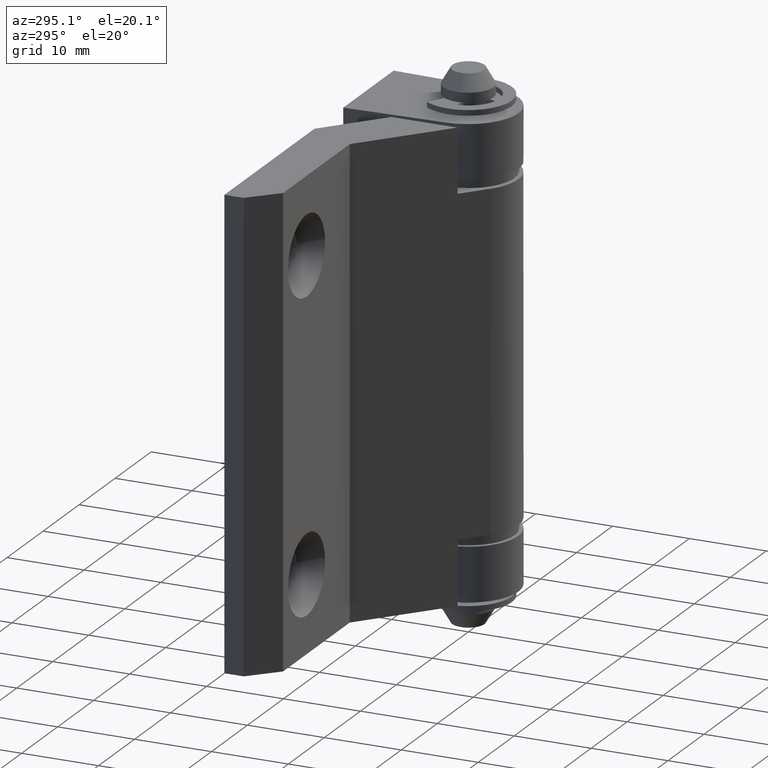
[diagram: clean part render]
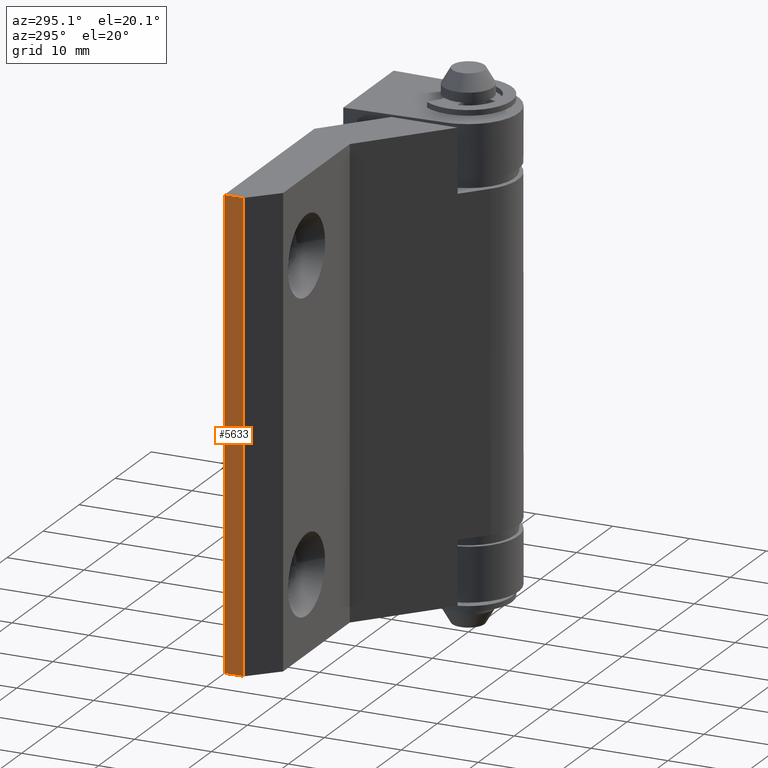
[diagram: same view with one face highlighted and labeled with its STEP entity id]
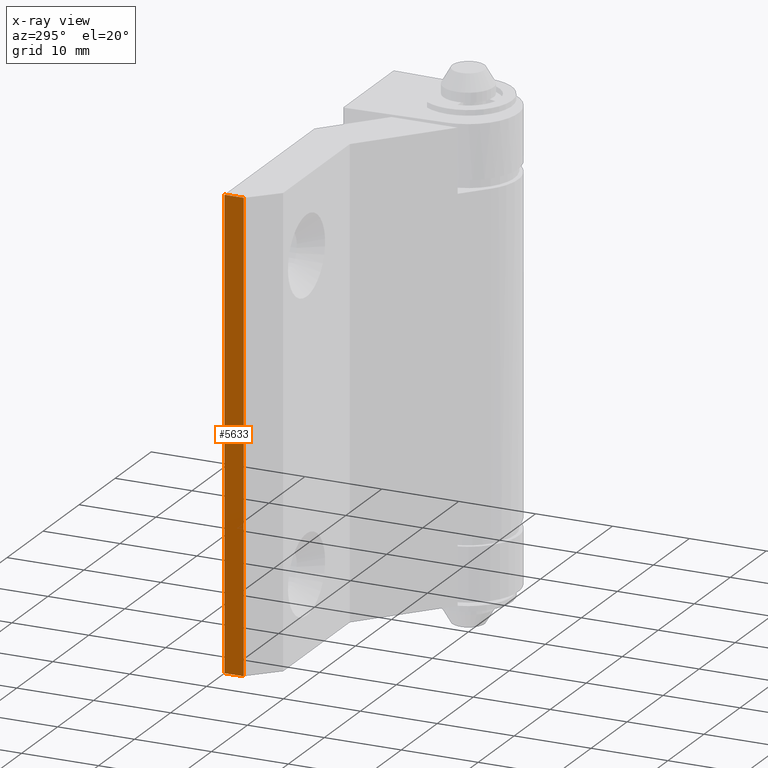
[diagram: x-ray of the same camera — body ghosted, the highlighted face saturated]
A machine part, auxiliary view. The second image highlights one B-rep face of the part: STEP entity #5633.
The next image is the same camera in x-ray: the body ghosted, the highlighted face saturated — about 0% of this face is hidden behind the body in this view.
In plain terms, the highlighted face is a freeform B-spline surface patch.
Its self-contained STEP definition (entity closure, byte-faithful):
#5598=CARTESIAN_POINT('',(-40.000030767411602,10.375125949138180,-2.997000026058217));
#5599=CARTESIAN_POINT('',(-40.000030767411602,10.375125949138180,62.997004485230804));
#5600=CARTESIAN_POINT('',(-40.000030767411602,13.124876038769820,-2.997000026058217));
#5601=CARTESIAN_POINT('',(-40.000030767411602,13.124876038769820,62.997004485230804));
#5602=B_SPLINE_SURFACE_WITH_KNOTS('',1,1,((#5598,#5600),(#5599,#5601)),.UNSPECIFIED.,.F.,.F.,.U.,(2,2),(2,2),(0.0,65.994004511289020),(0.0,2.749750089631643),.UNSPECIFIED.);
#5603=CARTESIAN_POINT('',(-40.000030767411602,10.500000498723200,0.0));
#5604=VERTEX_POINT('',#5603);
#5605=CARTESIAN_POINT('',(-40.000030767411602,13.000000617466821,0.0));
#5606=VERTEX_POINT('',#5605);
#5607=CARTESIAN_POINT('',(-40.000030767411602,10.500000498723200,0.0));
#5608=CARTESIAN_POINT('',(-40.000030767411602,13.000000617466821,0.0));
#5609=QUASI_UNIFORM_CURVE('',1,(#5607,#5608),.UNSPECIFIED.,.F.,.U.);
#5610=EDGE_CURVE('',#5604,#5606,#5609,.T.);
#5611=ORIENTED_EDGE('',*,*,#5610,.F.);
#5612=CARTESIAN_POINT('',(-40.000030767411602,10.500000498723200,60.000002849847100));
#5613=VERTEX_POINT('',#5612);
#5614=CARTESIAN_POINT('',(-40.000030767411602,10.500000498723200,60.000002849847100));
#5615=CARTESIAN_POINT('',(-40.000030767411602,10.500000498723200,0.0));
#5616=QUASI_UNIFORM_CURVE('',1,(#5614,#5615),.UNSPECIFIED.,.F.,.U.);
#5617=EDGE_CURVE('',#5613,#5604,#5616,.T.);
#5618=ORIENTED_EDGE('',*,*,#5617,.F.);
#5619=CARTESIAN_POINT('',(-40.000030767411602,13.000000617466821,60.000002849847100));
#5620=VERTEX_POINT('',#5619);
#5621=CARTESIAN_POINT('',(-40.000030767411602,10.500000498723200,60.000002849847100));
#5622=CARTESIAN_POINT('',(-40.000030767411602,13.000000617466821,60.000002849847100));
#5623=QUASI_UNIFORM_CURVE('',1,(#5621,#5622),.UNSPECIFIED.,.F.,.U.);
#5624=EDGE_CURVE('',#5613,#5620,#5623,.T.);
#5625=ORIENTED_EDGE('',*,*,#5624,.T.);
#5626=CARTESIAN_POINT('',(-40.000030767411602,13.000000617466821,60.000002849847100));
#5627=CARTESIAN_POINT('',(-40.000030767411602,13.000000617466821,0.0));
#5628=QUASI_UNIFORM_CURVE('',1,(#5626,#5627),.UNSPECIFIED.,.F.,.U.);
#5629=EDGE_CURVE('',#5620,#5606,#5628,.T.);
#5630=ORIENTED_EDGE('',*,*,#5629,.T.);
#5631=EDGE_LOOP('',(#5611,#5618,#5625,#5630));
#5632=FACE_OUTER_BOUND('',#5631,.T.);
#5633=ADVANCED_FACE('',(#5632),#5602,.T.);